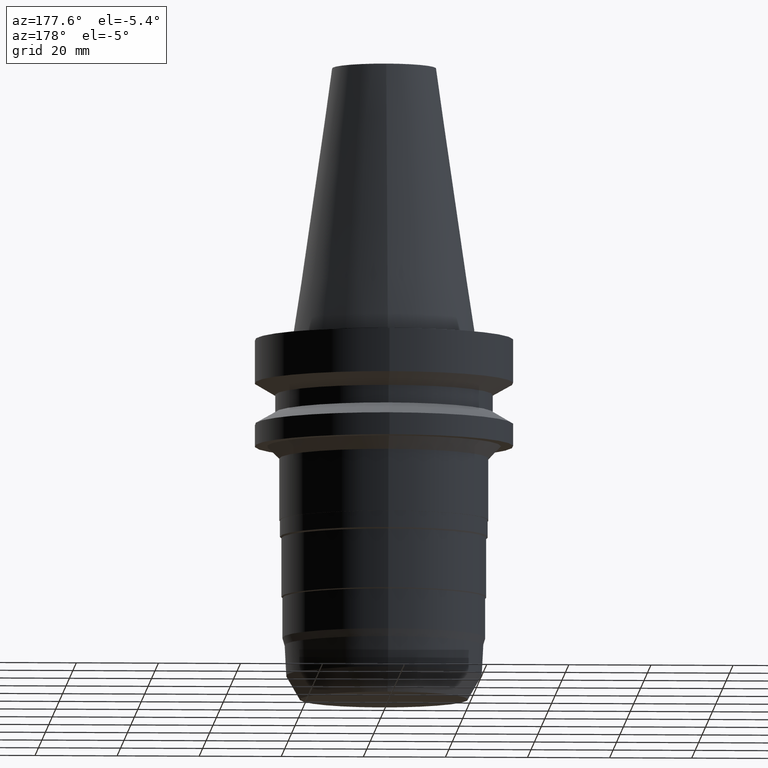
[diagram: clean part render]
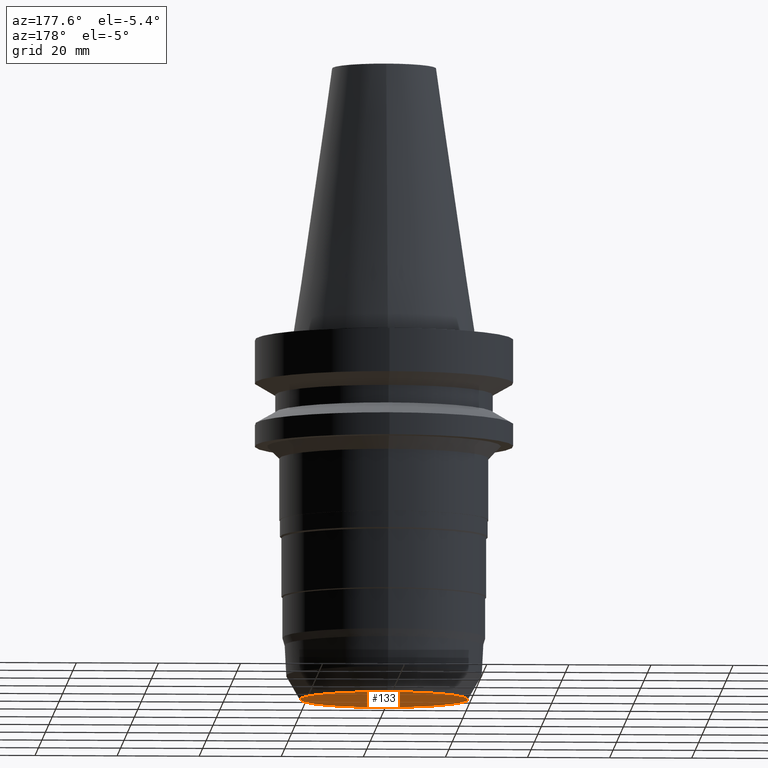
[diagram: same view with one face highlighted and labeled with its STEP entity id]
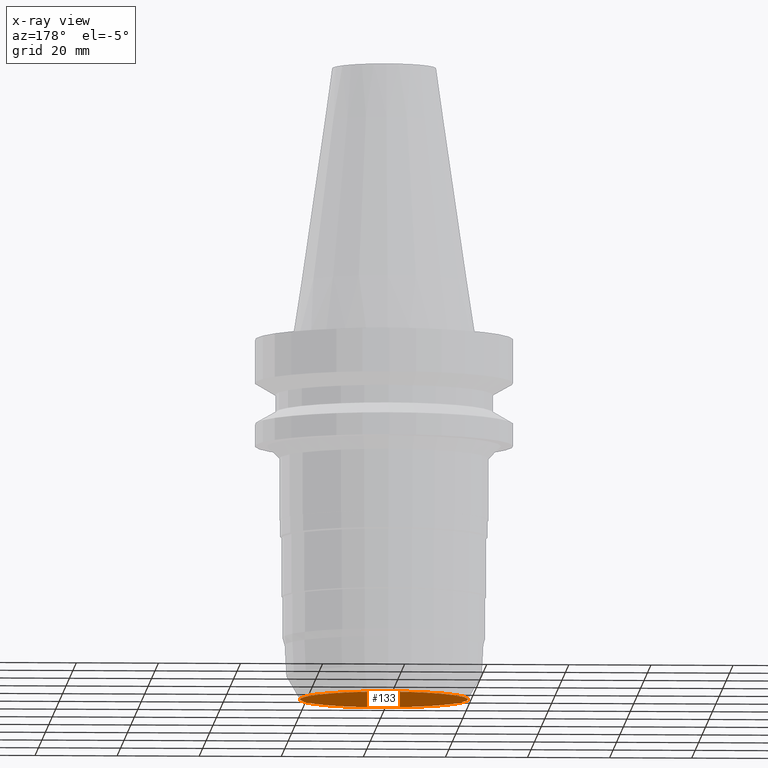
[diagram: x-ray of the same camera — body ghosted, the highlighted face saturated]
A machine part, auxiliary view. The second image highlights one B-rep face of the part: STEP entity #133.
The next image is the same camera in x-ray: the body ghosted, the highlighted face saturated — about 0% of this face is hidden behind the body in this view.
In plain terms, the highlighted planar face has unit normal (0, 0, -1).
Its self-contained STEP definition (entity closure, byte-faithful):
#108=EDGE_CURVE('Unnamed[1]',#259,#259,#260,.T.);
#133=ADVANCED_FACE('Unnamed[1]',(#298),#299,.T.);
#259=VERTEX_POINT('',#455);
#260=CIRCLE('',#456,20.5000000000001);
#298=FACE_OUTER_BOUND('',#504,.T.);
#299=PLANE('',#505);
#455=CARTESIAN_POINT('',(5.44355502220997E-015,20.5000000000001,-88.8999999999998));
#456=AXIS2_PLACEMENT_3D('',#666,#667,#668);
#504=EDGE_LOOP('',(#709));
#505=AXIS2_PLACEMENT_3D('',#710,#711,#712);
#666=CARTESIAN_POINT('',(5.44355502220997E-015,1.08871100444199E-014,-88.8999999999998));
#667=DIRECTION('',(6.12323399573677E-017,1.22464679914705E-016,-1.0));
#668=DIRECTION('',(-1.23259516440782E-032,1.0,1.22464679914705E-016));
#709=ORIENTED_EDGE('',*,*,#108,.T.);
#710=CARTESIAN_POINT('',(5.44355502220998E-015,10.2500000000001,-88.8999999999999));
#711=DIRECTION('',(6.12323399573677E-017,9.13422620662814E-015,-1.0));
#712=DIRECTION('',(-5.6413719706252E-031,1.0,9.13422620662814E-015));